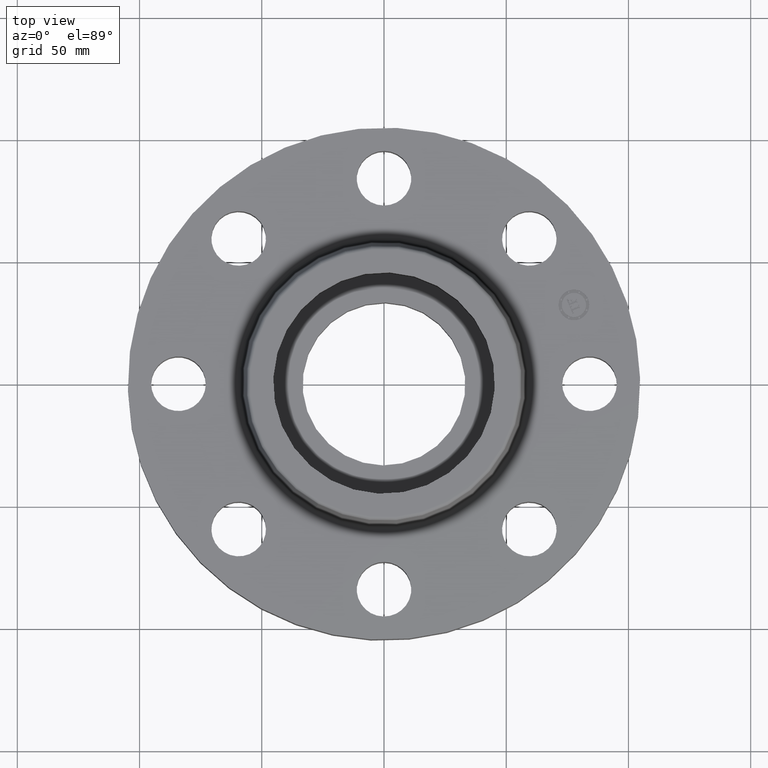
[diagram: clean part render]
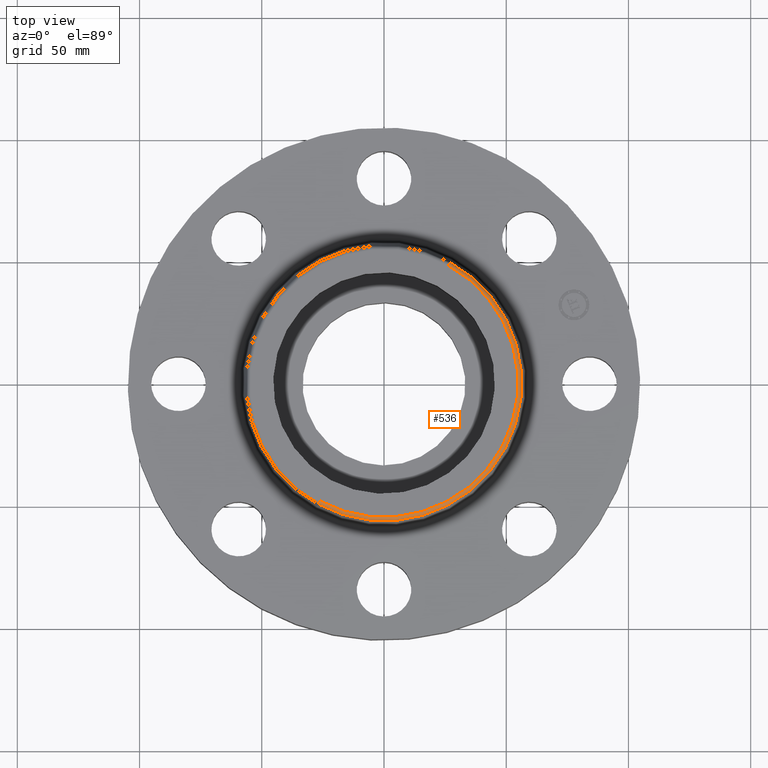
[diagram: same view with one face highlighted and labeled with its STEP entity id]
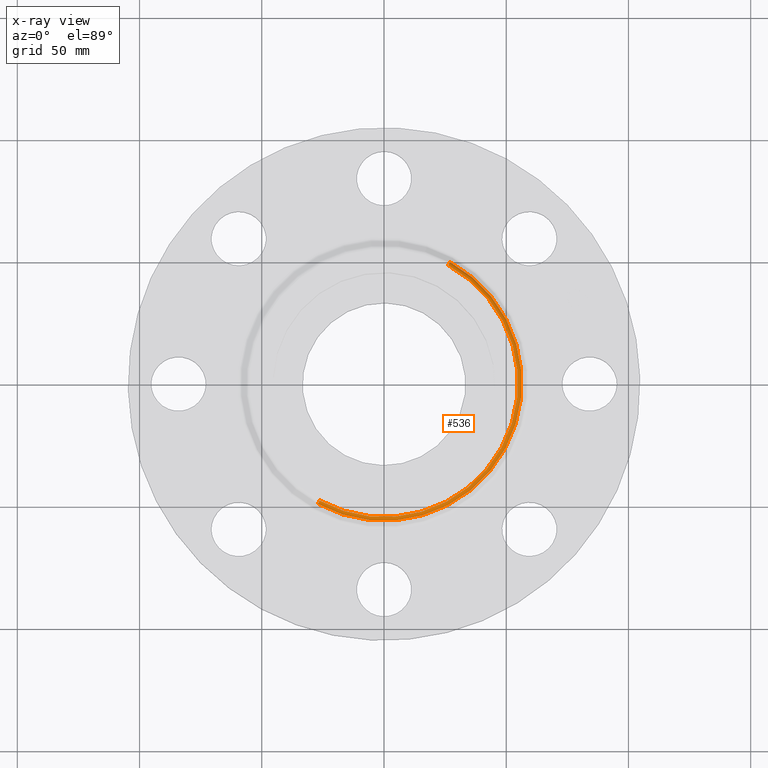
[diagram: x-ray of the same camera — body ghosted, the highlighted face saturated]
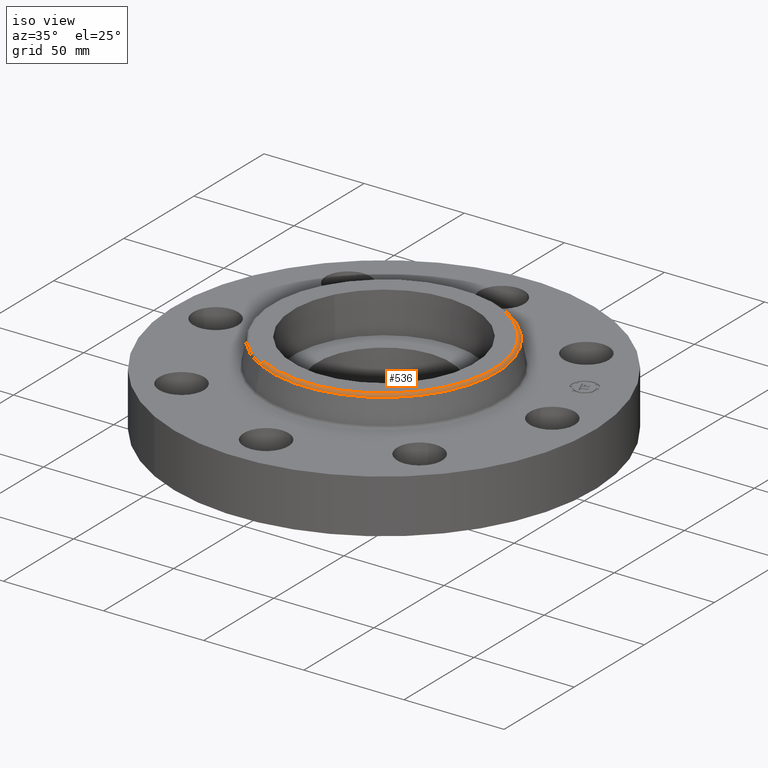
[diagram: same view with one face highlighted and labeled with its STEP entity id]
A machine part, top view. The second image highlights one B-rep face of the part: STEP entity #536.
The next image is the same camera in x-ray: the body ghosted, the highlighted face saturated — about 0% of this face is hidden behind the body in this view.
A second angle (iso view) of the same face is appended — the face is thin or edge-on in the first view.
In plain terms, the highlighted toroidal blend (fillet) surface has major radius 54.8424 mm and minor (blend) radius 1.524 mm.
Its self-contained STEP definition (entity closure, byte-faithful):
#477=AXIS2_PLACEMENT_3D('Circle Axis2P3D',#475,#476,$) ;
#509=AXIS2_PLACEMENT_3D('Torus Axis2P3D',#506,#507,#508) ;
#513=AXIS2_PLACEMENT_3D('Circle Axis2P3D',#511,#512,$) ;
#520=AXIS2_PLACEMENT_3D('Circle Axis2P3D',#518,#519,$) ;
#527=AXIS2_PLACEMENT_3D('Circle Axis2P3D',#525,#526,$) ;
#472=CARTESIAN_POINT('Vertex',(1.06347904098,1.94668532681,1.58041889067)) ;
#475=CARTESIAN_POINT('Axis2P3D Location',(0.,0.,1.58041889067)) ;
#479=CARTESIAN_POINT('Vertex',(-1.06347904098,-1.94668532681,1.58041889067)) ;
#506=CARTESIAN_POINT('Axis2P3D Location',(0.,0.,1.57000000001)) ;
#511=CARTESIAN_POINT('Axis2P3D Location',(1.03515052174,1.89483032016,1.57000000001)) ;
#515=CARTESIAN_POINT('Vertex',(1.03515052174,1.89483032016,1.63000000001)) ;
#518=CARTESIAN_POINT('Axis2P3D Location',(0.,0.,1.63000000001)) ;
#522=CARTESIAN_POINT('Vertex',(-1.03515052174,-1.89483032016,1.63000000001)) ;
#525=CARTESIAN_POINT('Axis2P3D Location',(-1.03515052174,-1.89483032016,1.57000000001)) ;
#476=DIRECTION('Axis2P3D Direction',(0.,0.,-0.0393700787402)) ;
#507=DIRECTION('Axis2P3D Direction',(0.,0.,-0.0393700787402)) ;
#508=DIRECTION('Axis2P3D XDirection',(-0.0188750212049,-0.0345504945626,0.)) ;
#512=DIRECTION('Axis2P3D Direction',(-0.0345504945626,0.0188750212049,0.)) ;
#519=DIRECTION('Axis2P3D Direction',(0.,0.,-0.0393700787402)) ;
#526=DIRECTION('Axis2P3D Direction',(0.0345504945626,-0.0188750212049,0.)) ;
#531=ORIENTED_EDGE('',*,*,#481,.F.) ;
#532=ORIENTED_EDGE('',*,*,#517,.T.) ;
#533=ORIENTED_EDGE('',*,*,#524,.T.) ;
#534=ORIENTED_EDGE('',*,*,#529,.F.) ;
#536=ADVANCED_FACE('PartBody',(#535),#510,.T.) ;
#478=CIRCLE('generated circle',#477,2.21823610832) ;
#514=CIRCLE('generated circle',#513,0.0600000000002) ;
#521=CIRCLE('generated circle',#520,2.15914764313) ;
#528=CIRCLE('generated circle',#527,0.0600000000002) ;
#510=TOROIDAL_SURFACE('homeo Torus',#509,2.15914764313,0.0600000000002) ;
#481=EDGE_CURVE('',#473,#480,#478,.T.) ;
#517=EDGE_CURVE('',#473,#516,#514,.F.) ;
#524=EDGE_CURVE('',#516,#523,#521,.T.) ;
#529=EDGE_CURVE('',#480,#523,#528,.F.) ;
#530=EDGE_LOOP('',(#531,#532,#533,#534)) ;
#535=FACE_OUTER_BOUND('',#530,.T.) ;
#473=VERTEX_POINT('',#472) ;
#480=VERTEX_POINT('',#479) ;
#516=VERTEX_POINT('',#515) ;
#523=VERTEX_POINT('',#522) ;